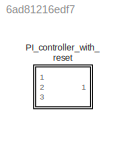
MODEL slx_6ad81216edf7
KIND library
CONFIG AbsTol = auto
CONFIG EnableMultiTasking = off
CONFIG FixedStep = auto
CONFIG MaxStep = auto
CONFIG MinStep = auto
CONFIG RelTol = 1e-3
CONFIG SampleTimeConstraint = Unconstrained
CONFIG Solver = VariableStepAuto
CONFIG SolverName = VariableStepAuto
CONFIG StartTime = 0.0
CONFIG StopTime = 10.0
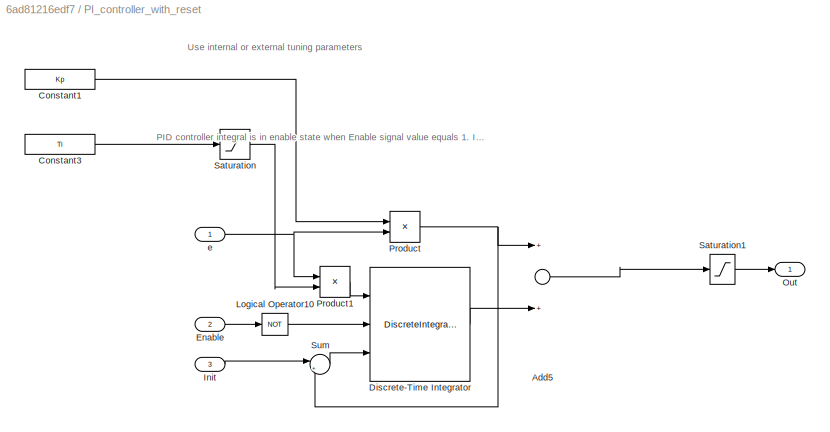
BLOCK [SubSystem] PI_controller_with_reset
  Ports = [3, 1]
  RequestExecContextInheritance = off
  Variant = off
BLOCK [Sum] PI_controller_with_reset/Add5
  InputSameDT = off
  OutDataTypeStr = Inherit: Inherit via internal rule
  Ports = [2, 1]
  SaturateOnIntegerOverflow = off
BLOCK [Constant] PI_controller_with_reset/Constant1
  Value = Kp
BLOCK [Constant] PI_controller_with_reset/Constant3
  Value = Ti
BLOCK [DiscreteIntegrator] PI_controller_with_reset/Discrete-Time Integrator
  ExternalReset = level
  ICPrevOutput = DiscIntNeverNeededParam
  ICPrevScaledInput = DiscIntNeverNeededParam
  InitialCondition = Int_init
  InitialConditionSource = external
  IntegratorMethod = Integration: Backward Euler
  LimitOutput = on
  LowerSaturationLimit = Idown
  Ports = [3, 1]
  SampleTime = Ts
  UpperSaturationLimit = Iup
  gainval = 1
BLOCK [Inport] PI_controller_with_reset/Enable
  IconDisplay = Port number
  Port = 2
BLOCK [Inport] PI_controller_with_reset/Init
  IconDisplay = Port number
  Port = 3
BLOCK [Logic] PI_controller_with_reset/Logical Operator10
  AllPortsSameDT = off
  IconShape = distinctive
  Operator = NOT
  OutDataTypeStr = boolean
  Ports = [1, 1]
BLOCK [Outport] PI_controller_with_reset/Out
  IconDisplay = Port number
BLOCK [Product] PI_controller_with_reset/Product
  InputSameDT = off
  OutDataTypeStr = Inherit: Inherit via internal rule
  Ports = [2, 1]
  RndMeth = Floor
  SaturateOnIntegerOverflow = off
BLOCK [Product] PI_controller_with_reset/Product1
  InputSameDT = off
  Inputs = */
  OutDataTypeStr = Inherit: Inherit via internal rule
  Ports = [2, 1]
  RndMeth = Floor
  SaturateOnIntegerOverflow = off
BLOCK [Saturate] PI_controller_with_reset/Saturation
  InputPortMap = u0
  LowerLimit = 0.0001
  Ports = [1, 1]
  UpperLimit = inf
BLOCK [Saturate] PI_controller_with_reset/Saturation1
  InputPortMap = u0
  LinearizeAsGain = off
  LowerLimit = PIdown
  Ports = [1, 1]
  UpperLimit = PIup
BLOCK [Sum] PI_controller_with_reset/Sum
  IconShape = round
  InputSameDT = off
  Inputs = |+-
  OutDataTypeStr = Inherit: Inherit via internal rule
  Ports = [2, 1]
  SaturateOnIntegerOverflow = off
BLOCK [Inport] PI_controller_with_reset/e
  IconDisplay = Port number
ANNOTATION PI_controller_with_reset: PID controller integral is in enable state when Enable signal value equals 1. If Enable state equals zero the PID output also equals zero.
ANNOTATION PI_controller_with_reset: Use internal or external tuning parameters
LINE PI_controller_with_reset/Add5:1 -> PI_controller_with_reset/Saturation1:1
LINE PI_controller_with_reset/Constant1:1 -> PI_controller_with_reset/Product:1
LINE PI_controller_with_reset/Constant3:1 -> PI_controller_with_reset/Saturation:1
LINE PI_controller_with_reset/Discrete-Time Integrator:1 -> PI_controller_with_reset/Add5:2
LINE PI_controller_with_reset/Enable:1 -> PI_controller_with_reset/Logical Operator10:1
LINE PI_controller_with_reset/Init:1 -> PI_controller_with_reset/Sum:1
LINE PI_controller_with_reset/Logical Operator10:1 -> PI_controller_with_reset/Discrete-Time Integrator:2
LINE PI_controller_with_reset/Product1:1 -> PI_controller_with_reset/Discrete-Time Integrator:1
NET PI_controller_with_reset/Product:1 -> PI_controller_with_reset/Add5:1, PI_controller_with_reset/Sum:2
LINE PI_controller_with_reset/Saturation1:1 -> PI_controller_with_reset/Out:1
LINE PI_controller_with_reset/Saturation:1 -> PI_controller_with_reset/Product1:2
LINE PI_controller_with_reset/Sum:1 -> PI_controller_with_reset/Discrete-Time Integrator:3
NET PI_controller_with_reset/e:1 -> PI_controller_with_reset/Product1:1, PI_controller_with_reset/Product:2
note: NET lines group one-source signal fan-out (src -> all destinations, sorted); 1:1 wires keep LINE
